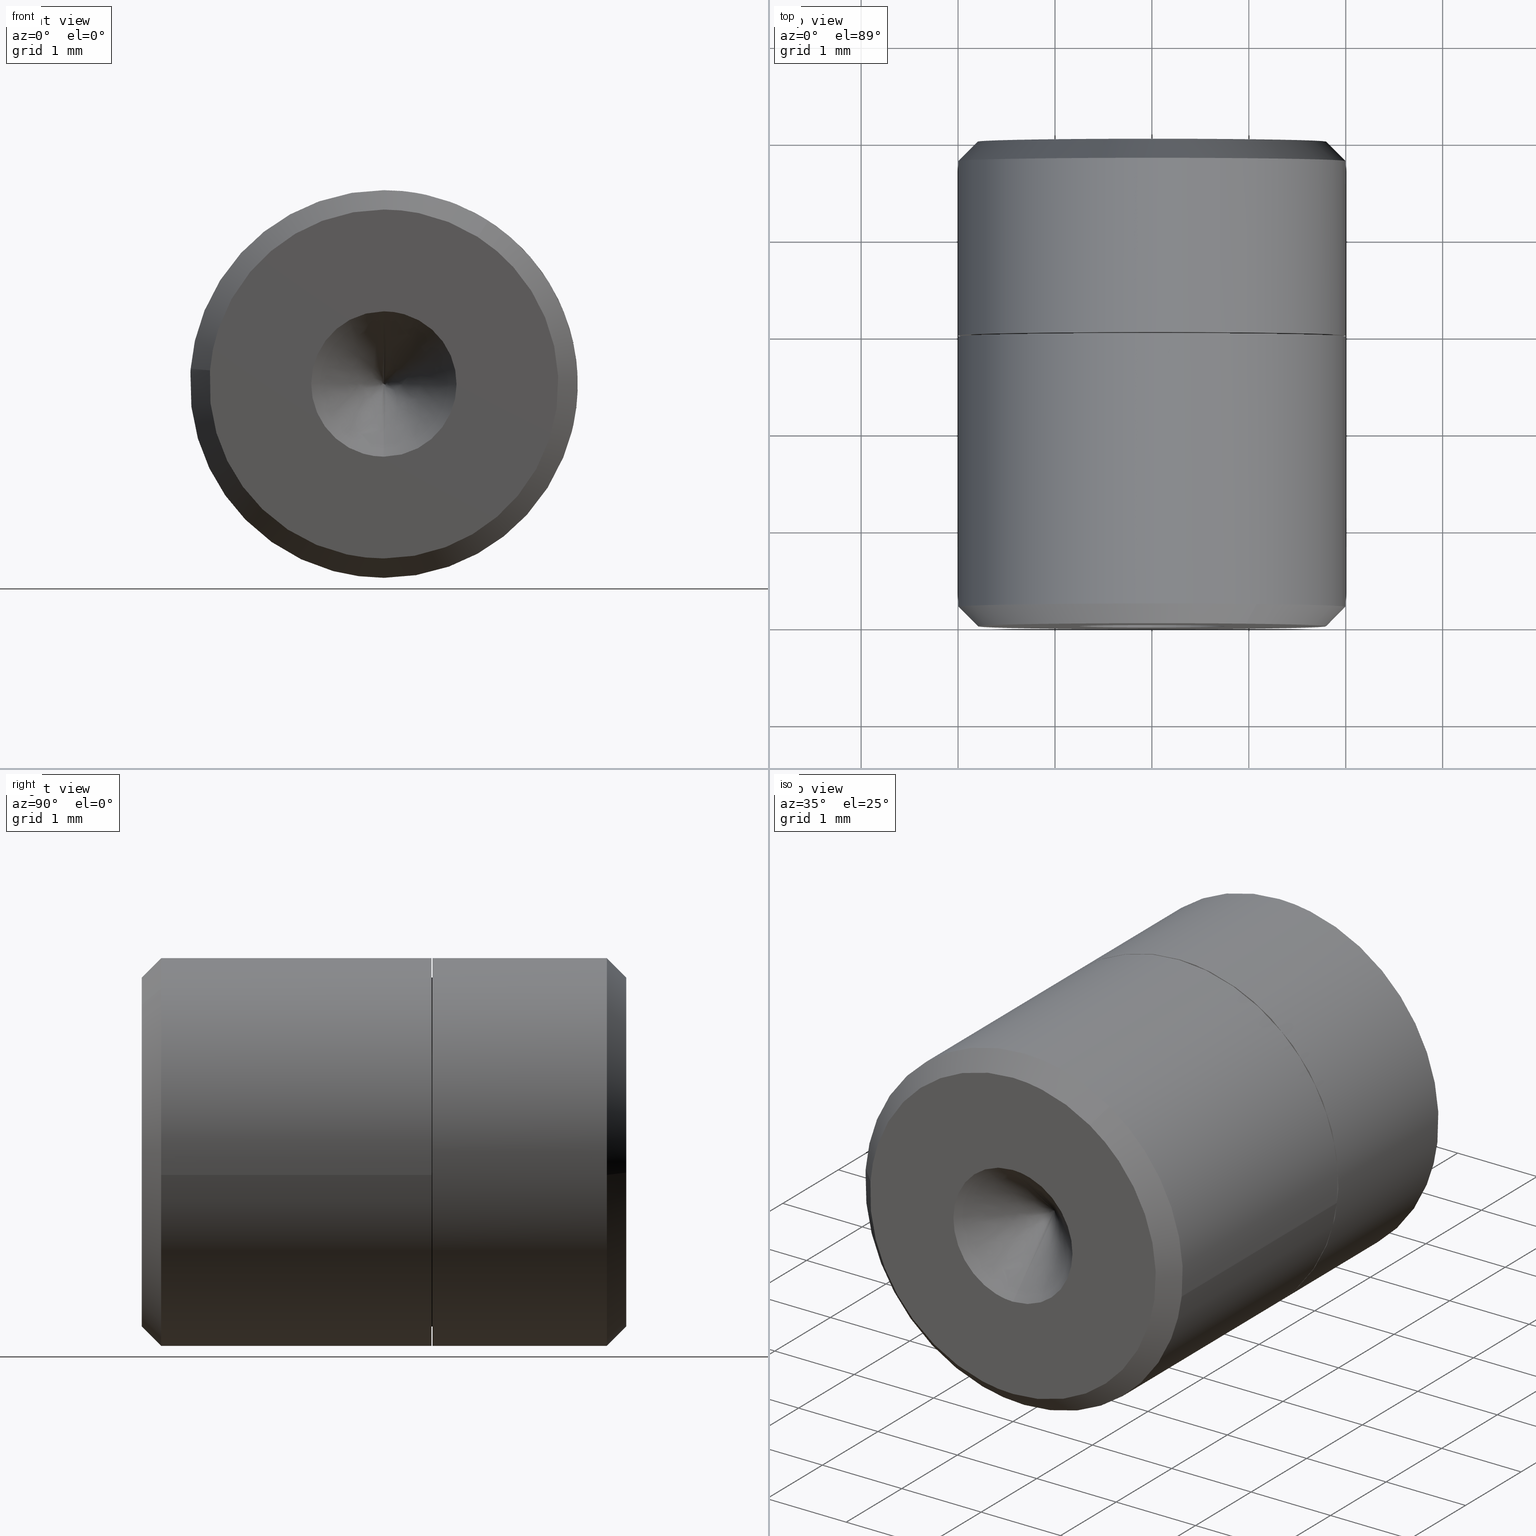
[diagram: canonical four-view strip — front | top / right | iso, engineering-drawing reading convention]
A machine part, canonical four-view strip (front | top / right | iso — engineering-drawing reading convention). The complete STEP part file that produces these views, byte-faithful:
ISO-10303-21;
HEADER;
/****************************************************************
 * Generated by software with PDE/Lib inside                    *
 * PDElib Version 4.4.1-0003, patched  Thursday August 19 11:58 *
 * International Technegroup Inc. (www.iti-oh.com)              *
 ****************************************************************/
FILE_DESCRIPTION((''),'2;1');
FILE_NAME('','2005-07-15T10:18:54',(''),(''),'','CADfix','');
FILE_SCHEMA(('AUTOMOTIVE_DESIGN'));
ENDSEC;
DATA;
#5=APPLICATION_CONTEXT('automotive design');
#6=APPLICATION_PROTOCOL_DEFINITION('Draft International Standard','automotive_design',1998,#5);
#7=PRODUCT_CONTEXT('None',#5,'mechanical');
#8=PRODUCT('body','','None',(#7));
#9=PRODUCT_RELATED_PRODUCT_CATEGORY('part','description',(#8));
#10=PRODUCT_DEFINITION_FORMATION('None','None',#8);
#11=PRODUCT_DEFINITION_CONTEXT('part definition',#5,'design');
#12=PRODUCT_DEFINITION('None','None',#10,#11);
#18=(NAMED_UNIT(*)PLANE_ANGLE_UNIT()SI_UNIT($,.RADIAN.));
#19=DIMENSIONAL_EXPONENTS(0.0,0.0,0.0,0.0,0.0,0.0,0.0);
#20=PLANE_ANGLE_MEASURE_WITH_UNIT(PLANE_ANGLE_MEASURE(0.017453292500000),#18);
#24=(CONVERSION_BASED_UNIT('DEGREE',#20)NAMED_UNIT(#19)PLANE_ANGLE_UNIT());
#28=(NAMED_UNIT(*)SI_UNIT($,.STERADIAN.)SOLID_ANGLE_UNIT());
#32=(LENGTH_UNIT()NAMED_UNIT(*)SI_UNIT(.MILLI.,.METRE.));
#34=UNCERTAINTY_MEASURE_WITH_UNIT(LENGTH_MEASURE(0.001000000000000),#32,'DISTANCE_ACCURACY_VALUE','');
#36=(GEOMETRIC_REPRESENTATION_CONTEXT(3)GLOBAL_UNCERTAINTY_ASSIGNED_CONTEXT((#34))GLOBAL_UNIT_ASSIGNED_CONTEXT((#24,#28,#32))REPRESENTATION_CONTEXT('None','None'));
#37=AXIS2_PLACEMENT_3D('',#38,#39,#40);
#38=CARTESIAN_POINT('',(0.0,0.0,0.0));
#39=DIRECTION('',(0.0,0.0,1.0));
#40=DIRECTION('',(1.0,0.0,0.0));
#41=ADVANCED_BREP_SHAPE_REPRESENTATION('',(#37,#1057),#36);
#42=PRODUCT_DEFINITION_SHAPE('','',#12);
#43=SHAPE_DEFINITION_REPRESENTATION(#42,#41);
#44=CARTESIAN_POINT('',(0.703235948783144,4.845003075000000,1.872287157553307));
#45=CARTESIAN_POINT('',(0.421978903430817,4.845003075000000,1.977928038730294));
#46=CARTESIAN_POINT('',(0.122097079069714,4.845003075000000,1.996269596843726));
#47=CARTESIAN_POINT('',(-1.874172517774020,4.845003074999999,2.118366675913440));
#48=CARTESIAN_POINT('',(-1.996269596843733,4.845003075000000,0.122097079069707));
#49=CARTESIAN_POINT('',(0.703235948783144,2.953874923125000,1.872287157553307));
#50=CARTESIAN_POINT('',(0.421978903430817,2.953874923124999,1.977928038730294));
#51=CARTESIAN_POINT('',(0.122097079069714,2.953874923124999,1.996269596843726));
#52=CARTESIAN_POINT('',(-1.874172517774020,2.953874923124999,2.118366675913440));
#53=CARTESIAN_POINT('',(-1.996269596843733,2.953874923124999,0.122097079069707));
#61=(BOUNDED_SURFACE()B_SPLINE_SURFACE(2,1,((#44,#49),(#45,#50),(#46,#51),(#47,#52),(#48,#53)),.UNSPECIFIED.,.F.,.F.,.U.)B_SPLINE_SURFACE_WITH_KNOTS((3,2,3),(2,2),(0.0,0.662741699796952,3.976450198781711),(0.0,1.0),.UNSPECIFIED.)GEOMETRIC_REPRESENTATION_ITEM()RATIONAL_B_SPLINE_SURFACE(((0.906274169979695,0.906274169979695),(0.941421356237309,0.941421356237309),(1.0,1.0),(0.707106781186548,0.707106781186548),(1.0,1.0)))REPRESENTATION_ITEM('')SURFACE());
#62=CARTESIAN_POINT('',(0.703235474031004,4.800003000000000,1.872287335871314));
#63=VERTEX_POINT('',#62);
#64=CARTESIAN_POINT('',(0.0,4.800002999999999,1.999999999999993));
#65=VERTEX_POINT('',#64);
#66=CARTESIAN_POINT('',(0.703235474031004,4.800003000000000,1.872287335871314));
#67=CARTESIAN_POINT('',(0.363214248271586,4.800002999999999,1.999999999999993));
#68=CARTESIAN_POINT('',(0.0,4.800002999999999,1.999999999999993));
#76=(BOUNDED_CURVE()B_SPLINE_CURVE(2,(#66,#67,#68),.UNSPECIFIED.,.F.,.U.)B_SPLINE_CURVE_WITH_KNOTS((3,3),(0.440284251000991,0.500000000000000),.UNSPECIFIED.)CURVE()GEOMETRIC_REPRESENTATION_ITEM()RATIONAL_B_SPLINE_CURVE((0.893499652661759,0.930038648247296,1.0))REPRESENTATION_ITEM(''));
#77=EDGE_CURVE('',#63,#65,#76,.T.);
#78=ORIENTED_EDGE('',*,*,#77,.T.);
#79=CARTESIAN_POINT('',(-1.996269596843765,4.800002999999885,0.122097079070154));
#80=VERTEX_POINT('',#79);
#81=CARTESIAN_POINT('',(0.0,4.800002999999999,1.999999999999993));
#82=CARTESIAN_POINT('',(-1.881412133809702,4.800002999999999,1.999999999999993));
#83=CARTESIAN_POINT('',(-1.996269596843766,4.800002999999885,0.122097079070154));
#91=(BOUNDED_CURVE()B_SPLINE_CURVE(2,(#81,#82,#83),.UNSPECIFIED.,.F.,.U.)B_SPLINE_CURVE_WITH_KNOTS((3,3),(0.500000000000000,0.739332962241814),.UNSPECIFIED.)CURVE()GEOMETRIC_REPRESENTATION_ITEM()RATIONAL_B_SPLINE_CURVE((1.0,0.719603993283347,0.976072041672871))REPRESENTATION_ITEM(''));
#92=EDGE_CURVE('',#65,#80,#91,.T.);
#93=ORIENTED_EDGE('',*,*,#92,.T.);
#94=CARTESIAN_POINT('',(-1.996269638693471,3.0,0.122096394828707));
#95=VERTEX_POINT('',#94);
#96=CARTESIAN_POINT('',(-1.996269596843765,4.800002999999885,0.122097079070154));
#97=CARTESIAN_POINT('',(-1.996269638693471,3.0,0.122096394828707));
#98=QUASI_UNIFORM_CURVE('',1,(#96,#97),.UNSPECIFIED.,.F.,.U.);
#99=EDGE_CURVE('',#80,#95,#98,.T.);
#100=ORIENTED_EDGE('',*,*,#99,.T.);
#101=CARTESIAN_POINT('',(0.0,3.0,1.999999999999993));
#102=VERTEX_POINT('',#101);
#103=CARTESIAN_POINT('',(0.0,3.0,1.999999999999993));
#104=CARTESIAN_POINT('',(-1.881413425966872,3.0,1.999999999999994));
#105=CARTESIAN_POINT('',(-1.996269638693471,3.0,0.122096394828706));
#113=(BOUNDED_CURVE()B_SPLINE_CURVE(2,(#103,#104,#105),.UNSPECIFIED.,.F.,.U.)B_SPLINE_CURVE_WITH_KNOTS((3,3),(0.500000000000000,0.739333080526194),.UNSPECIFIED.)CURVE()GEOMETRIC_REPRESENTATION_ITEM()RATIONAL_B_SPLINE_CURVE((1.0,0.719603854704575,0.976072295178945))REPRESENTATION_ITEM(''));
#114=EDGE_CURVE('',#102,#95,#113,.T.);
#115=ORIENTED_EDGE('',*,*,#114,.F.);
#116=CARTESIAN_POINT('',(0.703235363436929,3.0,1.872287377410666));
#117=VERTEX_POINT('',#116);
#118=CARTESIAN_POINT('',(0.703235363436929,3.0,1.872287377410667));
#119=CARTESIAN_POINT('',(0.363214126237348,3.000000000000000,1.999999999999993));
#120=CARTESIAN_POINT('',(0.0,3.0,1.999999999999993));
#128=(BOUNDED_CURVE()B_SPLINE_CURVE(2,(#118,#119,#120),.UNSPECIFIED.,.F.,.U.)B_SPLINE_CURVE_WITH_KNOTS((3,3),(0.440284269660865,0.500000000000000),.UNSPECIFIED.)CURVE()GEOMETRIC_REPRESENTATION_ITEM()RATIONAL_B_SPLINE_CURVE((0.893499675497047,0.930038670108699,1.0))REPRESENTATION_ITEM(''));
#129=EDGE_CURVE('',#117,#102,#128,.T.);
#130=ORIENTED_EDGE('',*,*,#129,.F.);
#131=CARTESIAN_POINT('',(0.703235474031004,4.800003000000000,1.872287335871314));
#132=CARTESIAN_POINT('',(0.703235363436929,3.0,1.872287377410666));
#133=QUASI_UNIFORM_CURVE('',1,(#131,#132),.UNSPECIFIED.,.F.,.U.);
#134=EDGE_CURVE('',#63,#117,#133,.T.);
#135=ORIENTED_EDGE('',*,*,#134,.F.);
#136=EDGE_LOOP('',(#78,#93,#100,#115,#130,#135));
#137=FACE_OUTER_BOUND('',#136,.T.);
#138=ADVANCED_FACE('',(#137),#61,.T.);
#139=CARTESIAN_POINT('',(-1.996269596843733,4.845003075000000,0.122097079069707));
#140=CARTESIAN_POINT('',(-2.118366675913447,4.845003074999999,-1.874172517774027));
#141=CARTESIAN_POINT('',(-0.122097079069714,4.845003075000000,-1.996269596843741));
#142=CARTESIAN_POINT('',(1.874172517774020,4.845003074999999,-2.118366675913454));
#143=CARTESIAN_POINT('',(1.996269596843733,4.845003075000000,-0.122097079069721));
#144=CARTESIAN_POINT('',(2.086474445738684,4.845003074999999,1.352739163606123));
#145=CARTESIAN_POINT('',(0.703235948783144,4.845003075000000,1.872287157553307));
#146=CARTESIAN_POINT('',(-1.996269596843733,2.953874923124999,0.122097079069707));
#147=CARTESIAN_POINT('',(-2.118366675913447,2.953874923124999,-1.874172517774027));
#148=CARTESIAN_POINT('',(-0.122097079069714,2.953874923124999,-1.996269596843741));
#149=CARTESIAN_POINT('',(1.874172517774020,2.953874923124999,-2.118366675913454));
#150=CARTESIAN_POINT('',(1.996269596843733,2.953874923124999,-0.122097079069721));
#151=CARTESIAN_POINT('',(2.086474445738684,2.953874923124999,1.352739163606123));
#152=CARTESIAN_POINT('',(0.703235948783144,2.953874923125000,1.872287157553307));
#160=(BOUNDED_SURFACE()B_SPLINE_SURFACE(2,1,((#139,#146),(#140,#147),(#141,#148),(#142,#149),(#143,#150),(#144,#151),(#145,#152)),.UNSPECIFIED.,.F.,.F.,.U.)B_SPLINE_SURFACE_WITH_KNOTS((3,2,2,3),(2,2),(0.0,3.313708498984759,6.627416997969518,9.278383797157325),(0.0,1.0),.UNSPECIFIED.)GEOMETRIC_REPRESENTATION_ITEM()RATIONAL_B_SPLINE_SURFACE(((1.0,1.0),(0.707106781186548,0.707106781186548),(1.0,1.0),(0.707106781186548,0.707106781186548),(1.0,1.0),(0.765685424949238,0.765685424949238),(0.906274169979695,0.906274169979695)))REPRESENTATION_ITEM('')SURFACE());
#161=CARTESIAN_POINT('',(1.986019052727345,4.800002999999828,-0.236068469314878));
#162=VERTEX_POINT('',#161);
#163=CARTESIAN_POINT('',(1.986019052727345,4.800002999999828,-0.236068469314878));
#164=CARTESIAN_POINT('',(2.0,4.800002999999999,-0.118448239305175));
#165=CARTESIAN_POINT('',(2.0,4.800002999999999,-7.277231E-015));
#166=CARTESIAN_POINT('',(2.0,4.800002999999998,1.385219941802166));
#167=CARTESIAN_POINT('',(0.703235474031004,4.800003000000000,1.872287335871315));
#175=(BOUNDED_CURVE()B_SPLINE_CURVE(2,(#163,#164,#165,#166,#167),.UNSPECIFIED.,.F.,.U.)B_SPLINE_CURVE_WITH_KNOTS((3,2,3),(0.229562473515417,0.250000000000000,0.440284251000991),.UNSPECIFIED.)CURVE()GEOMETRIC_REPRESENTATION_ITEM()RATIONAL_B_SPLINE_CURVE((0.956026754187441,0.976055948333382,1.0,0.777068132939251,0.893499652661760))REPRESENTATION_ITEM(''));
#176=EDGE_CURVE('',#162,#63,#175,.T.);
#177=ORIENTED_EDGE('',*,*,#176,.T.);
#178=ORIENTED_EDGE('',*,*,#134,.T.);
#179=CARTESIAN_POINT('',(0.0,3.0,-2.000000000000008));
#180=VERTEX_POINT('',#179);
#181=CARTESIAN_POINT('',(0.0,3.0,-2.000000000000008));
#182=CARTESIAN_POINT('',(2.000000000000000,3.0,-2.000000000000008));
#183=CARTESIAN_POINT('',(2.0,3.0,-7.277231E-015));
#184=CARTESIAN_POINT('',(2.000000000000000,3.000000000000001,1.385220116611858));
#185=CARTESIAN_POINT('',(0.703235363436929,3.0,1.872287377410667));
#193=(BOUNDED_CURVE()B_SPLINE_CURVE(2,(#181,#182,#183,#184,#185),.UNSPECIFIED.,.F.,.U.)B_SPLINE_CURVE_WITH_KNOTS((3,2,3),(0.0,0.250000000000000,0.440284269660865),.UNSPECIFIED.)CURVE()GEOMETRIC_REPRESENTATION_ITEM()RATIONAL_B_SPLINE_CURVE((1.0,0.707106781186548,1.0,0.777068111077849,0.893499675497047))REPRESENTATION_ITEM(''));
#194=EDGE_CURVE('',#180,#117,#193,.T.);
#195=ORIENTED_EDGE('',*,*,#194,.F.);
#196=CARTESIAN_POINT('',(-1.996269638693470,3.0,0.122096394828706));
#197=CARTESIAN_POINT('',(-2.000000000000000,3.000000000000000,0.061104840437647));
#198=CARTESIAN_POINT('',(-2.0,3.0,-7.277231E-015));
#199=CARTESIAN_POINT('',(-2.000000000000000,3.0,-2.000000000000008));
#200=CARTESIAN_POINT('',(0.0,3.0,-2.000000000000008));
#208=(BOUNDED_CURVE()B_SPLINE_CURVE(2,(#196,#197,#198,#199,#200),.UNSPECIFIED.,.F.,.U.)B_SPLINE_CURVE_WITH_KNOTS((3,2,3),(0.739333080526193,0.750000000000000,1.0),.UNSPECIFIED.)CURVE()GEOMETRIC_REPRESENTATION_ITEM()RATIONAL_B_SPLINE_CURVE((0.976072295178943,0.987502926481971,1.0,0.707106781186548,1.0))REPRESENTATION_ITEM(''));
#209=EDGE_CURVE('',#95,#180,#208,.T.);
#210=ORIENTED_EDGE('',*,*,#209,.F.);
#211=ORIENTED_EDGE('',*,*,#99,.F.);
#212=CARTESIAN_POINT('',(0.0,4.800002999999999,-2.000000000000008));
#213=VERTEX_POINT('',#212);
#214=CARTESIAN_POINT('',(-1.996269596843766,4.800002999999885,0.122097079070154));
#215=CARTESIAN_POINT('',(-2.0,4.800002999999999,0.061105526598061));
#216=CARTESIAN_POINT('',(-2.0,4.800002999999999,-7.277231E-015));
#217=CARTESIAN_POINT('',(-2.000000000000000,4.800003000000000,-2.000000000000008));
#218=CARTESIAN_POINT('',(0.0,4.800002999999999,-2.000000000000008));
#226=(BOUNDED_CURVE()B_SPLINE_CURVE(2,(#214,#215,#216,#217,#218),.UNSPECIFIED.,.F.,.U.)B_SPLINE_CURVE_WITH_KNOTS((3,2,3),(0.739332962241815,0.750000000000000,1.0),.UNSPECIFIED.)CURVE()GEOMETRIC_REPRESENTATION_ITEM()RATIONAL_B_SPLINE_CURVE((0.976072041672873,0.987502787903202,1.0,0.707106781186548,1.0))REPRESENTATION_ITEM(''));
#227=EDGE_CURVE('',#80,#213,#226,.T.);
#228=ORIENTED_EDGE('',*,*,#227,.T.);
#229=CARTESIAN_POINT('',(0.0,4.800002999999999,-2.000000000000008));
#230=CARTESIAN_POINT('',(1.776349051900332,4.800002999999999,-2.000000000000008));
#231=CARTESIAN_POINT('',(1.986019052727345,4.800002999999828,-0.236068469314878));
#239=(BOUNDED_CURVE()B_SPLINE_CURVE(2,(#229,#230,#231),.UNSPECIFIED.,.F.,.U.)B_SPLINE_CURVE_WITH_KNOTS((3,3),(0.0,0.229562473515417),.UNSPECIFIED.)CURVE()GEOMETRIC_REPRESENTATION_ITEM()RATIONAL_B_SPLINE_CURVE((1.0,0.731050832853166,0.956026754187441))REPRESENTATION_ITEM(''));
#240=EDGE_CURVE('',#213,#162,#239,.T.);
#241=ORIENTED_EDGE('',*,*,#240,.T.);
#242=EDGE_LOOP('',(#177,#178,#195,#210,#211,#228,#241));
#243=FACE_OUTER_BOUND('',#242,.T.);
#244=ADVANCED_FACE('',(#243),#160,.T.);
#245=CARTESIAN_POINT('',(1.782449046318469,5.005007100000002,-0.211871088253615));
#246=CARTESIAN_POINT('',(1.788512705838311,5.005007100000001,-0.160858162339885));
#247=CARTESIAN_POINT('',(1.791648893902727,5.005007100000001,-0.109581940740815));
#248=CARTESIAN_POINT('',(1.901230834643535,5.005007100000001,1.682066953161911));
#249=CARTESIAN_POINT('',(0.109581940740808,5.005007100000001,1.791648893902719));
#250=CARTESIAN_POINT('',(-1.682066953161919,5.005007100000001,1.901230834643527));
#251=CARTESIAN_POINT('',(-1.791648893902727,5.005007100000001,0.109581940740801));
#252=CARTESIAN_POINT('',(1.991108302887555,4.794877897500000,-0.236673403840022));
#253=CARTESIAN_POINT('',(1.997881794023684,4.794877897499998,-0.179688739649365));
#254=CARTESIAN_POINT('',(2.001385114417259,4.794877897499998,-0.122409957527944));
#255=CARTESIAN_POINT('',(2.123795071945195,4.794877897499998,1.878975156889315));
#256=CARTESIAN_POINT('',(0.122409957527937,4.794877897499998,2.001385114417252));
#257=CARTESIAN_POINT('',(-1.878975156889323,4.794877897499998,2.123795071945188));
#258=CARTESIAN_POINT('',(-2.001385114417259,4.794877897499998,0.122409957527929));
#266=(BOUNDED_SURFACE()B_SPLINE_SURFACE(2,1,((#245,#252),(#246,#253),(#247,#254),(#248,#255),(#249,#256),(#250,#257),(#251,#258)),.UNSPECIFIED.,.F.,.F.,.U.)B_SPLINE_SURFACE_WITH_KNOTS((3,2,2,3),(2,2),(0.0,0.132888000175363,3.455088004559443,6.777288008943523),(0.0,0.297166825123025),.UNSPECIFIED.)GEOMETRIC_REPRESENTATION_ITEM()RATIONAL_B_SPLINE_SURFACE(((0.977505800795127,0.977505800795127),(0.988284271247462,0.988284271247462),(1.0,1.0),(0.707106781186548,0.707106781186548),(1.0,1.0),(0.707106781186548,0.707106781186548),(1.0,1.0)))REPRESENTATION_ITEM('')SURFACE());
#267=ORIENTED_EDGE('',*,*,#176,.F.);
#268=CARTESIAN_POINT('',(1.787414168426023,5.000006999999906,-0.212461268280169));
#269=VERTEX_POINT('',#268);
#270=CARTESIAN_POINT('',(1.787414168426023,5.000006999999906,-0.212461268280169));
#271=CARTESIAN_POINT('',(1.986019052727345,4.800002999999828,-0.236068469314878));
#272=QUASI_UNIFORM_CURVE('',1,(#270,#271),.UNSPECIFIED.,.F.,.U.);
#273=EDGE_CURVE('',#269,#162,#272,.T.);
#274=ORIENTED_EDGE('',*,*,#273,.F.);
#275=CARTESIAN_POINT('',(0.0,5.000007000000000,1.799996999999993));
#276=VERTEX_POINT('',#275);
#277=CARTESIAN_POINT('',(1.787414168426023,5.000006999999906,-0.212461268280169));
#278=CARTESIAN_POINT('',(1.799997000000000,5.000007000000000,-0.106603237701785));
#279=CARTESIAN_POINT('',(1.799997000000000,5.000007000000000,-7.277231E-015));
#280=CARTESIAN_POINT('',(1.799997000000000,5.000007000000000,1.799996999999993));
#281=CARTESIAN_POINT('',(0.0,5.000007000000000,1.799996999999993));
#289=(BOUNDED_CURVE()B_SPLINE_CURVE(2,(#277,#278,#279,#280,#281),.UNSPECIFIED.,.F.,.U.)B_SPLINE_CURVE_WITH_KNOTS((3,2,3),(0.229562473515514,0.250000000000000,0.500000000000000),.UNSPECIFIED.)CURVE()GEOMETRIC_REPRESENTATION_ITEM()RATIONAL_B_SPLINE_CURVE((0.956026754187630,0.976055948333494,1.0,0.707106781186548,1.0))REPRESENTATION_ITEM(''));
#290=EDGE_CURVE('',#269,#276,#289,.T.);
#291=ORIENTED_EDGE('',*,*,#290,.T.);
#292=CARTESIAN_POINT('',(-1.796639642755264,5.000006999999432,0.109887188021407));
#293=VERTEX_POINT('',#292);
#294=CARTESIAN_POINT('',(0.0,5.000007000000000,1.799996999999993));
#295=CARTESIAN_POINT('',(-1.693268098304004,5.000007000000001,1.799996999999993));
#296=CARTESIAN_POINT('',(-1.796639642755264,5.000006999999433,0.109887188021407));
#304=(BOUNDED_CURVE()B_SPLINE_CURVE(2,(#294,#295,#296),.UNSPECIFIED.,.F.,.U.)B_SPLINE_CURVE_WITH_KNOTS((3,3),(0.500000000000000,0.739332962241150),.UNSPECIFIED.)CURVE()GEOMETRIC_REPRESENTATION_ITEM()RATIONAL_B_SPLINE_CURVE((1.0,0.719603993284125,0.976072041671448))REPRESENTATION_ITEM(''));
#305=EDGE_CURVE('',#276,#293,#304,.T.);
#306=ORIENTED_EDGE('',*,*,#305,.T.);
#307=CARTESIAN_POINT('',(-1.796639642755264,5.000006999999432,0.109887188021407));
#308=CARTESIAN_POINT('',(-1.996269596843765,4.800002999999885,0.122097079070154));
#309=QUASI_UNIFORM_CURVE('',1,(#307,#308),.UNSPECIFIED.,.F.,.U.);
#310=EDGE_CURVE('',#293,#80,#309,.T.);
#311=ORIENTED_EDGE('',*,*,#310,.T.);
#312=ORIENTED_EDGE('',*,*,#92,.F.);
#313=ORIENTED_EDGE('',*,*,#77,.F.);
#314=EDGE_LOOP('',(#267,#274,#291,#306,#311,#312,#313));
#315=FACE_OUTER_BOUND('',#314,.T.);
#316=ADVANCED_FACE('',(#315),#266,.T.);
#317=CARTESIAN_POINT('',(-1.791648893902727,5.005007100000001,0.109581940740801));
#318=CARTESIAN_POINT('',(-1.901230834643535,5.005007100000001,-1.682066953161926));
#319=CARTESIAN_POINT('',(-0.109581940740808,5.005007100000001,-1.791648893902734));
#320=CARTESIAN_POINT('',(1.582367855310654,5.005007100000001,-1.895132976592319));
#321=CARTESIAN_POINT('',(1.782449046318469,5.005007100000002,-0.211871088253615));
#322=CARTESIAN_POINT('',(-2.001385114417259,4.794877897499998,0.122409957527929));
#323=CARTESIAN_POINT('',(-2.123795071945195,4.794877897499998,-1.878975156889329));
#324=CARTESIAN_POINT('',(-0.122409957527937,4.794877897499998,-2.001385114417266));
#325=CARTESIAN_POINT('',(1.767604959838212,4.794877897499998,-2.116983378886881));
#326=CARTESIAN_POINT('',(1.991108302887555,4.794877897500000,-0.236673403840022));
#334=(BOUNDED_SURFACE()B_SPLINE_SURFACE(2,1,((#317,#322),(#318,#323),(#319,#324),(#320,#325),(#321,#326)),.UNSPECIFIED.,.F.,.F.,.U.)B_SPLINE_SURFACE_WITH_KNOTS((3,2,3),(2,2),(0.0,3.322200004384079,6.511512008592796),(0.0,0.297166825123025),.UNSPECIFIED.)GEOMETRIC_REPRESENTATION_ITEM()RATIONAL_B_SPLINE_SURFACE(((1.0,1.0),(0.707106781186548,0.707106781186548),(1.0,1.0),(0.718822509939086,0.718822509939086),(0.977505800795127,0.977505800795127)))REPRESENTATION_ITEM('')SURFACE());
#335=ORIENTED_EDGE('',*,*,#240,.F.);
#336=ORIENTED_EDGE('',*,*,#227,.F.);
#337=ORIENTED_EDGE('',*,*,#310,.F.);
#338=CARTESIAN_POINT('',(0.0,5.000007000000000,-1.799997000000007));
#339=VERTEX_POINT('',#338);
#340=CARTESIAN_POINT('',(-1.796639642755263,5.000006999999432,0.109887188021407));
#341=CARTESIAN_POINT('',(-1.799997000000000,5.000007000000001,0.054994882283431));
#342=CARTESIAN_POINT('',(-1.799997000000000,5.000007000000000,-7.277231E-015));
#343=CARTESIAN_POINT('',(-1.799997000000000,5.000007000000000,-1.799997000000007));
#344=CARTESIAN_POINT('',(0.0,5.000007000000000,-1.799997000000007));
#352=(BOUNDED_CURVE()B_SPLINE_CURVE(2,(#340,#341,#342,#343,#344),.UNSPECIFIED.,.F.,.U.)B_SPLINE_CURVE_WITH_KNOTS((3,2,3),(0.739332962241151,0.750000000000000,1.0),.UNSPECIFIED.)CURVE()GEOMETRIC_REPRESENTATION_ITEM()RATIONAL_B_SPLINE_CURVE((0.976072041671450,0.987502787902424,1.0,0.707106781186548,1.0))REPRESENTATION_ITEM(''));
#353=EDGE_CURVE('',#293,#339,#352,.T.);
#354=ORIENTED_EDGE('',*,*,#353,.T.);
#355=CARTESIAN_POINT('',(0.0,5.000007000000000,-1.799997000000007));
#356=CARTESIAN_POINT('',(1.598711482187640,5.000006999999999,-1.799997000000007));
#357=CARTESIAN_POINT('',(1.787414168426023,5.000006999999906,-0.212461268280169));
#365=(BOUNDED_CURVE()B_SPLINE_CURVE(2,(#355,#356,#357),.UNSPECIFIED.,.F.,.U.)B_SPLINE_CURVE_WITH_KNOTS((3,3),(0.0,0.229562473515514),.UNSPECIFIED.)CURVE()GEOMETRIC_REPRESENTATION_ITEM()RATIONAL_B_SPLINE_CURVE((1.0,0.731050832853053,0.956026754187630))REPRESENTATION_ITEM(''));
#366=EDGE_CURVE('',#339,#269,#365,.T.);
#367=ORIENTED_EDGE('',*,*,#366,.T.);
#368=ORIENTED_EDGE('',*,*,#273,.T.);
#369=EDGE_LOOP('',(#335,#336,#337,#354,#367,#368));
#370=FACE_OUTER_BOUND('',#369,.T.);
#371=ADVANCED_FACE('',(#370),#334,.T.);
#372=CARTESIAN_POINT('',(1.787416154445073,3.000250000000001,-0.212461504347938));
#373=CARTESIAN_POINT('',(1.793496711419874,3.000250000000000,-0.161306421933638));
#374=CARTESIAN_POINT('',(1.796641639024562,3.000250000000000,-0.109887310114210));
#375=CARTESIAN_POINT('',(1.906528949138765,3.000250000000001,1.686754328910352));
#376=CARTESIAN_POINT('',(0.109887310114203,3.000250000000000,1.796641639024554));
#377=CARTESIAN_POINT('',(-1.686754328910359,3.000250000000001,1.906528949138758));
#378=CARTESIAN_POINT('',(-1.796641639024562,3.000250000000000,0.109887310114196));
#379=CARTESIAN_POINT('',(1.787416154445073,2.989743750000000,-0.212461504347938));
#380=CARTESIAN_POINT('',(1.793496711419874,2.989743750000000,-0.161306421933638));
#381=CARTESIAN_POINT('',(1.796641639024562,2.989743750000000,-0.109887310114210));
#382=CARTESIAN_POINT('',(1.906528949138765,2.989743750000000,1.686754328910352));
#383=CARTESIAN_POINT('',(0.109887310114203,2.989743750000000,1.796641639024554));
#384=CARTESIAN_POINT('',(-1.686754328910359,2.989743750000000,1.906528949138758));
#385=CARTESIAN_POINT('',(-1.796641639024562,2.989743750000000,0.109887310114196));
#393=(BOUNDED_SURFACE()B_SPLINE_SURFACE(2,1,((#372,#379),(#373,#380),(#374,#381),(#375,#382),(#376,#383),(#377,#384),(#378,#385)),.UNSPECIFIED.,.F.,.F.,.U.)B_SPLINE_SURFACE_WITH_KNOTS((3,2,2,3),(2,2),(3.078760800517997,3.141592653589793,4.712388980384690,6.283185307179586),(0.0,0.010506250000001),.UNSPECIFIED.)GEOMETRIC_REPRESENTATION_ITEM()RATIONAL_B_SPLINE_SURFACE(((0.977505800795127,0.977505800795127),(0.988284271247462,0.988284271247462),(1.0,1.0),(0.707106781186548,0.707106781186548),(1.0,1.0),(0.707106781186548,0.707106781186548),(1.0,1.0)))REPRESENTATION_ITEM('')SURFACE());
#394=CARTESIAN_POINT('',(1.787416221779421,3.000000000000212,-0.212460937869666));
#395=VERTEX_POINT('',#394);
#396=CARTESIAN_POINT('',(0.0,3.0,1.799998999999993));
#397=VERTEX_POINT('',#396);
#398=CARTESIAN_POINT('',(1.787416221779421,3.000000000000212,-0.212460937869666));
#399=CARTESIAN_POINT('',(1.799999000000000,3.000000000000001,-0.106602783682350));
#400=CARTESIAN_POINT('',(1.799999000000000,3.0,-7.277231E-015));
#401=CARTESIAN_POINT('',(1.799999000000000,3.000000000000000,1.799998999999993));
#402=CARTESIAN_POINT('',(0.0,3.0,1.799998999999993));
#410=(BOUNDED_CURVE()B_SPLINE_CURVE(2,(#398,#399,#400,#401,#402),.UNSPECIFIED.,.F.,.U.)B_SPLINE_CURVE_WITH_KNOTS((3,2,3),(0.229562580638628,0.250000000000000,0.500000000000000),.UNSPECIFIED.)CURVE()GEOMETRIC_REPRESENTATION_ITEM()RATIONAL_B_SPLINE_CURVE((0.956026964153426,0.976056073836030,1.0,0.707106781186547,1.0))REPRESENTATION_ITEM(''));
#411=EDGE_CURVE('',#395,#397,#410,.T.);
#412=ORIENTED_EDGE('',*,*,#411,.T.);
#413=CARTESIAN_POINT('',(-1.796641727162468,2.999999999999628,0.109885869053202));
#414=VERTEX_POINT('',#413);
#415=CARTESIAN_POINT('',(0.0,3.0,1.799998999999993));
#416=CARTESIAN_POINT('',(-1.693271340410624,3.000000000000000,1.799998999999992));
#417=CARTESIAN_POINT('',(-1.796641727162468,2.999999999999627,0.109885869053202));
#425=(BOUNDED_CURVE()B_SPLINE_CURVE(2,(#415,#416,#417),.UNSPECIFIED.,.F.,.U.)B_SPLINE_CURVE_WITH_KNOTS((3,3),(0.500000000000000,0.739333100639336),.UNSPECIFIED.)CURVE()GEOMETRIC_REPRESENTATION_ITEM()RATIONAL_B_SPLINE_CURVE((1.0,0.719603831140563,0.976072338285286))REPRESENTATION_ITEM(''));
#426=EDGE_CURVE('',#397,#414,#425,.T.);
#427=ORIENTED_EDGE('',*,*,#426,.T.);
#428=CARTESIAN_POINT('',(-1.796641726100859,2.990000000000000,0.109885886410811));
#429=VERTEX_POINT('',#428);
#430=CARTESIAN_POINT('',(-1.796641727162468,2.999999999999628,0.109885869053202));
#431=CARTESIAN_POINT('',(-1.796641726100859,2.990000000000000,0.109885886410811));
#432=QUASI_UNIFORM_CURVE('',1,(#430,#431),.UNSPECIFIED.,.F.,.U.);
#433=EDGE_CURVE('',#414,#429,#432,.T.);
#434=ORIENTED_EDGE('',*,*,#433,.T.);
#435=CARTESIAN_POINT('',(0.0,2.990000000000000,1.799998999999993));
#436=VERTEX_POINT('',#435);
#437=CARTESIAN_POINT('',(0.0,2.990000000000000,1.799998999999993));
#438=CARTESIAN_POINT('',(-1.693271324021123,2.990000000000001,1.799998999999993));
#439=CARTESIAN_POINT('',(-1.796641726100859,2.990000000000000,0.109885886410811));
#447=(BOUNDED_CURVE()B_SPLINE_CURVE(2,(#437,#438,#439),.UNSPECIFIED.,.F.,.U.)B_SPLINE_CURVE_WITH_KNOTS((3,3),(0.500000000000000,0.739333098972337),.UNSPECIFIED.)CURVE()GEOMETRIC_REPRESENTATION_ITEM()RATIONAL_B_SPLINE_CURVE((1.0,0.719603833093574,0.976072334712585))REPRESENTATION_ITEM(''));
#448=EDGE_CURVE('',#436,#429,#447,.T.);
#449=ORIENTED_EDGE('',*,*,#448,.F.);
#450=CARTESIAN_POINT('',(1.787416220967506,2.990000000000000,-0.212460944700251));
#451=VERTEX_POINT('',#450);
#452=CARTESIAN_POINT('',(1.787416220967506,2.990000000000000,-0.212460944700251));
#453=CARTESIAN_POINT('',(1.799999000000000,2.990000000000000,-0.106602790585147));
#454=CARTESIAN_POINT('',(1.799999000000000,2.990000000000000,-7.277231E-015));
#455=CARTESIAN_POINT('',(1.799999000000000,2.990000000000000,1.799998999999993));
#456=CARTESIAN_POINT('',(0.0,2.990000000000000,1.799998999999993));
#464=(BOUNDED_CURVE()B_SPLINE_CURVE(2,(#452,#453,#454,#455,#456),.UNSPECIFIED.,.F.,.U.)B_SPLINE_CURVE_WITH_KNOTS((3,2,3),(0.229562579346941,0.250000000000000,0.500000000000000),.UNSPECIFIED.)CURVE()GEOMETRIC_REPRESENTATION_ITEM()RATIONAL_B_SPLINE_CURVE((0.956026961621663,0.976056072322724,1.0,0.707106781186547,1.0))REPRESENTATION_ITEM(''));
#465=EDGE_CURVE('',#451,#436,#464,.T.);
#466=ORIENTED_EDGE('',*,*,#465,.F.);
#467=CARTESIAN_POINT('',(1.787416221779421,3.000000000000212,-0.212460937869666));
#468=CARTESIAN_POINT('',(1.787416220967506,2.990000000000000,-0.212460944700251));
#469=QUASI_UNIFORM_CURVE('',1,(#467,#468),.UNSPECIFIED.,.F.,.U.);
#470=EDGE_CURVE('',#395,#451,#469,.T.);
#471=ORIENTED_EDGE('',*,*,#470,.F.);
#472=EDGE_LOOP('',(#412,#427,#434,#449,#466,#471));
#473=FACE_OUTER_BOUND('',#472,.T.);
#474=ADVANCED_FACE('',(#473),#393,.T.);
#475=CARTESIAN_POINT('',(-1.796641639024562,3.000250000000000,0.109887310114196));
#476=CARTESIAN_POINT('',(-1.906528949138765,3.000250000000001,-1.686754328910366));
#477=CARTESIAN_POINT('',(-0.109887310114203,3.000250000000000,-1.796641639024569));
#478=CARTESIAN_POINT('',(1.586777401967612,3.000250000000000,-1.900414098332359));
#479=CARTESIAN_POINT('',(1.787416154445073,3.000250000000001,-0.212461504347938));
#480=CARTESIAN_POINT('',(-1.796641639024562,2.989743750000000,0.109887310114196));
#481=CARTESIAN_POINT('',(-1.906528949138765,2.989743750000000,-1.686754328910366));
#482=CARTESIAN_POINT('',(-0.109887310114203,2.989743750000000,-1.796641639024569));
#483=CARTESIAN_POINT('',(1.586777401967612,2.989743749999999,-1.900414098332359));
#484=CARTESIAN_POINT('',(1.787416154445073,2.989743750000000,-0.212461504347938));
#492=(BOUNDED_SURFACE()B_SPLINE_SURFACE(2,1,((#475,#480),(#476,#481),(#477,#482),(#478,#483),(#479,#484)),.UNSPECIFIED.,.F.,.F.,.U.)B_SPLINE_SURFACE_WITH_KNOTS((3,2,3),(2,2),(0.0,1.570796326794897,3.078760800517997),(0.0,0.010506250000001),.UNSPECIFIED.)GEOMETRIC_REPRESENTATION_ITEM()RATIONAL_B_SPLINE_SURFACE(((1.0,1.0),(0.707106781186548,0.707106781186548),(1.0,1.0),(0.718822509939086,0.718822509939086),(0.977505800795127,0.977505800795127)))REPRESENTATION_ITEM('')SURFACE());
#493=CARTESIAN_POINT('',(0.0,3.0,-1.799999000000008));
#494=VERTEX_POINT('',#493);
#495=CARTESIAN_POINT('',(0.0,3.0,-1.799999000000008));
#496=CARTESIAN_POINT('',(1.598714279018743,2.999999999999999,-1.799999000000007));
#497=CARTESIAN_POINT('',(1.787416221779421,3.000000000000211,-0.212460937869666));
#505=(BOUNDED_CURVE()B_SPLINE_CURVE(2,(#495,#496,#497),.UNSPECIFIED.,.F.,.U.)B_SPLINE_CURVE_WITH_KNOTS((3,3),(0.0,0.229562580638628),.UNSPECIFIED.)CURVE()GEOMETRIC_REPRESENTATION_ITEM()RATIONAL_B_SPLINE_CURVE((1.0,0.731050707350518,0.956026964153426))REPRESENTATION_ITEM(''));
#506=EDGE_CURVE('',#494,#395,#505,.T.);
#507=ORIENTED_EDGE('',*,*,#506,.T.);
#508=ORIENTED_EDGE('',*,*,#470,.T.);
#509=CARTESIAN_POINT('',(0.0,2.990000000000000,-1.799999000000008));
#510=VERTEX_POINT('',#509);
#511=CARTESIAN_POINT('',(0.0,2.990000000000000,-1.799999000000008));
#512=CARTESIAN_POINT('',(1.598714266713800,2.990000000000001,-1.799999000000008));
#513=CARTESIAN_POINT('',(1.787416220967507,2.990000000000000,-0.212460944700251));
#521=(BOUNDED_CURVE()B_SPLINE_CURVE(2,(#511,#512,#513),.UNSPECIFIED.,.F.,.U.)B_SPLINE_CURVE_WITH_KNOTS((3,3),(0.0,0.229562579346941),.UNSPECIFIED.)CURVE()GEOMETRIC_REPRESENTATION_ITEM()RATIONAL_B_SPLINE_CURVE((1.0,0.731050708863824,0.956026961621663))REPRESENTATION_ITEM(''));
#522=EDGE_CURVE('',#510,#451,#521,.T.);
#523=ORIENTED_EDGE('',*,*,#522,.F.);
#524=CARTESIAN_POINT('',(-1.796641726100859,2.990000000000000,0.109885886410811));
#525=CARTESIAN_POINT('',(-1.799999000000001,2.990000000000001,0.054994229537077));
#526=CARTESIAN_POINT('',(-1.799999000000000,2.990000000000000,-7.277231E-015));
#527=CARTESIAN_POINT('',(-1.799999000000000,2.990000000000000,-1.799999000000008));
#528=CARTESIAN_POINT('',(0.0,2.990000000000000,-1.799999000000008));
#536=(BOUNDED_CURVE()B_SPLINE_CURVE(2,(#524,#525,#526,#527,#528),.UNSPECIFIED.,.F.,.U.)B_SPLINE_CURVE_WITH_KNOTS((3,2,3),(0.739333098972337,0.750000000000000,1.0),.UNSPECIFIED.)CURVE()GEOMETRIC_REPRESENTATION_ITEM()RATIONAL_B_SPLINE_CURVE((0.976072334712585,0.987502948092973,1.0,0.707106781186547,1.0))REPRESENTATION_ITEM(''));
#537=EDGE_CURVE('',#429,#510,#536,.T.);
#538=ORIENTED_EDGE('',*,*,#537,.F.);
#539=ORIENTED_EDGE('',*,*,#433,.F.);
#540=CARTESIAN_POINT('',(-1.796641727162468,2.999999999999627,0.109885869053202));
#541=CARTESIAN_POINT('',(-1.799999000000000,3.000000000000000,0.054994220833939));
#542=CARTESIAN_POINT('',(-1.799999000000000,3.0,-7.277231E-015));
#543=CARTESIAN_POINT('',(-1.799999000000000,3.000000000000000,-1.799999000000008));
#544=CARTESIAN_POINT('',(0.0,3.0,-1.799999000000008));
#552=(BOUNDED_CURVE()B_SPLINE_CURVE(2,(#540,#541,#542,#543,#544),.UNSPECIFIED.,.F.,.U.)B_SPLINE_CURVE_WITH_KNOTS((3,2,3),(0.739333100639336,0.750000000000000,1.0),.UNSPECIFIED.)CURVE()GEOMETRIC_REPRESENTATION_ITEM()RATIONAL_B_SPLINE_CURVE((0.976072338285286,0.987502950045984,1.0,0.707106781186547,1.0))REPRESENTATION_ITEM(''));
#553=EDGE_CURVE('',#414,#494,#552,.T.);
#554=ORIENTED_EDGE('',*,*,#553,.T.);
#555=EDGE_LOOP('',(#507,#508,#523,#538,#539,#554));
#556=FACE_OUTER_BOUND('',#555,.T.);
#557=ADVANCED_FACE('',(#556),#492,.T.);
#558=CARTESIAN_POINT('',(0.965441622938872,-0.005000100000001,1.513256023595539));
#559=CARTESIAN_POINT('',(1.874024559082568,-0.005000100000001,0.933589548942481));
#560=CARTESIAN_POINT('',(1.789465592210697,-0.005000100000001,-0.140833996410917));
#561=CARTESIAN_POINT('',(1.648631595799788,-0.005000100000001,-1.930299588621613));
#562=CARTESIAN_POINT('',(-0.140833996410910,-0.005000100000001,-1.789465592210704));
#563=CARTESIAN_POINT('',(-1.930299588621606,-0.005000100000001,-1.648631595799795));
#564=CARTESIAN_POINT('',(-1.789465592210697,-0.005000100000001,0.140833996410902));
#565=CARTESIAN_POINT('',(1.078458085991246,0.205129102500022,1.690400699582123));
#566=CARTESIAN_POINT('',(2.093401497375403,0.205129102500022,1.042877346627190));
#567=CARTESIAN_POINT('',(1.998943894347645,0.205129102500022,-0.157320296331818));
#568=CARTESIAN_POINT('',(1.841623598015834,0.205129102500022,-2.156264190679463));
#569=CARTESIAN_POINT('',(-0.157320296331811,0.205129102500022,-1.998943894347652));
#570=CARTESIAN_POINT('',(-2.156264190679456,0.205129102500022,-1.841623598015841));
#571=CARTESIAN_POINT('',(-1.998943894347645,0.205129102500022,0.157320296331803));
#579=(BOUNDED_SURFACE()B_SPLINE_SURFACE(2,1,((#558,#565),(#559,#566),(#560,#567),(#561,#568),(#562,#569),(#563,#570),(#564,#571)),.UNSPECIFIED.,.F.,.F.,.U.)B_SPLINE_SURFACE_WITH_KNOTS((3,2,2,3),(2,2),(0.0,2.259095945239803,5.581295864710102,8.903495784180400),(0.0,0.297165339322330),.UNSPECIFIED.)GEOMETRIC_REPRESENTATION_ITEM()RATIONAL_B_SPLINE_SURFACE(((0.872532871172386,0.872532871172386),(0.800832611206852,0.800832611206852),(1.0,1.0),(0.707106781186548,0.707106781186548),(1.0,1.0),(0.707106781186548,0.707106781186548),(1.0,1.0)))REPRESENTATION_ITEM('')SURFACE());
#580=CARTESIAN_POINT('',(1.986019150225537,0.200004000000021,-0.236067649068556));
#581=VERTEX_POINT('',#580);
#582=CARTESIAN_POINT('',(1.075701586892890,0.200004000000050,1.686080097728519));
#583=VERTEX_POINT('',#582);
#584=CARTESIAN_POINT('',(1.986019150225537,0.200004000000021,-0.236067649068556));
#585=CARTESIAN_POINT('',(2.000000000000000,0.200004000000021,-0.118447410387395));
#586=CARTESIAN_POINT('',(2.0,0.200004000000021,-7.277231E-015));
#587=CARTESIAN_POINT('',(2.000000000000000,0.200004000000021,1.096387312028698));
#588=CARTESIAN_POINT('',(1.075701586892890,0.200004000000050,1.686080097728518));
#596=(BOUNDED_CURVE()B_SPLINE_CURVE(2,(#584,#585,#586,#587,#588),.UNSPECIFIED.,.F.,.U.)B_SPLINE_CURVE_WITH_KNOTS((3,2,3),(0.229562613115593,0.250000000000000,0.407950112627485),.UNSPECIFIED.)CURVE()GEOMETRIC_REPRESENTATION_ITEM()RATIONAL_B_SPLINE_CURVE((0.956027027809680,0.976056111885160,1.0,0.814949932402354,0.863729296954884))REPRESENTATION_ITEM(''));
#597=EDGE_CURVE('',#581,#583,#596,.T.);
#598=ORIENTED_EDGE('',*,*,#597,.T.);
#599=CARTESIAN_POINT('',(0.968130890353736,8.237936E-014,1.517471244915091));
#600=VERTEX_POINT('',#599);
#601=CARTESIAN_POINT('',(0.968130890353736,8.237936E-014,1.517471244915091));
#602=CARTESIAN_POINT('',(1.075701586892890,0.200004000000050,1.686080097728519));
#603=QUASI_UNIFORM_CURVE('',1,(#601,#602),.UNSPECIFIED.,.F.,.U.);
#604=EDGE_CURVE('',#600,#583,#603,.T.);
#605=ORIENTED_EDGE('',*,*,#604,.F.);
#606=CARTESIAN_POINT('',(0.0,0.0,-1.799999000000008));
#607=VERTEX_POINT('',#606);
#608=CARTESIAN_POINT('',(0.0,0.0,-1.799999000000008));
#609=CARTESIAN_POINT('',(1.799999000000000,0.0,-1.799999000000008));
#610=CARTESIAN_POINT('',(1.799999000000000,0.0,-7.277231E-015));
#611=CARTESIAN_POINT('',(1.799999000000000,0.0,0.986748032630783));
#612=CARTESIAN_POINT('',(0.968130890353736,8.237936E-014,1.517471244915091));
#620=(BOUNDED_CURVE()B_SPLINE_CURVE(2,(#608,#609,#610,#611,#612),.UNSPECIFIED.,.F.,.U.)B_SPLINE_CURVE_WITH_KNOTS((3,2,3),(0.0,0.250000000000000,0.407950112627305),.UNSPECIFIED.)CURVE()GEOMETRIC_REPRESENTATION_ITEM()RATIONAL_B_SPLINE_CURVE((1.0,0.707106781186547,1.0,0.814949932402566,0.863729296954772))REPRESENTATION_ITEM(''));
#621=EDGE_CURVE('',#607,#600,#620,.T.);
#622=ORIENTED_EDGE('',*,*,#621,.F.);
#623=CARTESIAN_POINT('',(-1.794450203802471,4.389054E-013,0.141226293854398));
#624=VERTEX_POINT('',#623);
#625=CARTESIAN_POINT('',(-1.794450203802471,4.389054E-013,0.141226293854398));
#626=CARTESIAN_POINT('',(-1.799999000000000,0.0,0.070722153327051));
#627=CARTESIAN_POINT('',(-1.799999000000000,0.0,-7.277231E-015));
#628=CARTESIAN_POINT('',(-1.799999000000000,0.0,-1.799999000000008));
#629=CARTESIAN_POINT('',(0.0,0.0,-1.799999000000008));
#637=(BOUNDED_CURVE()B_SPLINE_CURVE(2,(#625,#626,#627,#628,#629),.UNSPECIFIED.,.F.,.U.)B_SPLINE_CURVE_WITH_KNOTS((3,2,3),(0.736331300632128,0.750000000000000,1.0),.UNSPECIFIED.)CURVE()GEOMETRIC_REPRESENTATION_ITEM()RATIONAL_B_SPLINE_CURVE((0.969723356170482,0.983986122580602,1.0,0.707106781186547,1.0))REPRESENTATION_ITEM(''));
#638=EDGE_CURVE('',#624,#607,#637,.T.);
#639=ORIENTED_EDGE('',*,*,#638,.F.);
#640=CARTESIAN_POINT('',(-1.993834667466275,0.200004000000070,0.156918191456064));
#641=VERTEX_POINT('',#640);
#642=CARTESIAN_POINT('',(-1.794450203802471,4.389054E-013,0.141226293854398));
#643=CARTESIAN_POINT('',(-1.993834667466275,0.200004000000070,0.156918191456064));
#644=QUASI_UNIFORM_CURVE('',1,(#642,#643),.UNSPECIFIED.,.F.,.U.);
#645=EDGE_CURVE('',#624,#641,#644,.T.);
#646=ORIENTED_EDGE('',*,*,#645,.T.);
#647=CARTESIAN_POINT('',(-1.996269638693471,0.200004000000021,0.122096394828707));
#648=VERTEX_POINT('',#647);
#649=CARTESIAN_POINT('',(-1.993834667466276,0.200004000000070,0.156918191456064));
#650=CARTESIAN_POINT('',(-1.995204125566377,0.200004000000021,0.139517576458017));
#651=CARTESIAN_POINT('',(-1.996269638693471,0.200004000000021,0.122096394828706));
#659=(BOUNDED_CURVE()B_SPLINE_CURVE(2,(#649,#650,#651),.UNSPECIFIED.,.F.,.U.)B_SPLINE_CURVE_WITH_KNOTS((3,3),(0.736331300632702,0.739333080526192),.UNSPECIFIED.)CURVE()GEOMETRIC_REPRESENTATION_ITEM()RATIONAL_B_SPLINE_CURVE((0.969723356171680,0.972855598990357,0.976072295178941))REPRESENTATION_ITEM(''));
#660=EDGE_CURVE('',#641,#648,#659,.T.);
#661=ORIENTED_EDGE('',*,*,#660,.T.);
#662=CARTESIAN_POINT('',(0.0,0.200004000000021,-2.000000000000008));
#663=VERTEX_POINT('',#662);
#664=CARTESIAN_POINT('',(-1.996269638693470,0.200004000000021,0.122096394828706));
#665=CARTESIAN_POINT('',(-2.000000000000000,0.200004000000021,0.061104840437647));
#666=CARTESIAN_POINT('',(-2.0,0.200004000000021,-7.277231E-015));
#667=CARTESIAN_POINT('',(-2.000000000000000,0.200004000000021,-2.000000000000008));
#668=CARTESIAN_POINT('',(0.0,0.200004000000021,-2.000000000000008));
#676=(BOUNDED_CURVE()B_SPLINE_CURVE(2,(#664,#665,#666,#667,#668),.UNSPECIFIED.,.F.,.U.)B_SPLINE_CURVE_WITH_KNOTS((3,2,3),(0.739333080526193,0.750000000000000,1.0),.UNSPECIFIED.)CURVE()GEOMETRIC_REPRESENTATION_ITEM()RATIONAL_B_SPLINE_CURVE((0.976072295178943,0.987502926481971,1.0,0.707106781186548,1.0))REPRESENTATION_ITEM(''));
#677=EDGE_CURVE('',#648,#663,#676,.T.);
#678=ORIENTED_EDGE('',*,*,#677,.T.);
#679=CARTESIAN_POINT('',(0.0,0.200004000000021,-2.000000000000008));
#680=CARTESIAN_POINT('',(1.776350529531005,0.200004000000021,-2.000000000000007));
#681=CARTESIAN_POINT('',(1.986019150225537,0.200004000000021,-0.236067649068556));
#689=(BOUNDED_CURVE()B_SPLINE_CURVE(2,(#679,#680,#681),.UNSPECIFIED.,.F.,.U.)B_SPLINE_CURVE_WITH_KNOTS((3,3),(0.0,0.229562613115593),.UNSPECIFIED.)CURVE()GEOMETRIC_REPRESENTATION_ITEM()RATIONAL_B_SPLINE_CURVE((1.0,0.731050669301387,0.956027027809680))REPRESENTATION_ITEM(''));
#690=EDGE_CURVE('',#663,#581,#689,.T.);
#691=ORIENTED_EDGE('',*,*,#690,.T.);
#692=EDGE_LOOP('',(#598,#605,#622,#639,#646,#661,#678,#691));
#693=FACE_OUTER_BOUND('',#692,.T.);
#694=ADVANCED_FACE('',(#693),#579,.T.);
#695=CARTESIAN_POINT('',(-1.789465592210697,-0.005000100000001,0.140833996410902));
#696=CARTESIAN_POINT('',(-1.648631595799788,-0.005000100000001,1.930299588621599));
#697=CARTESIAN_POINT('',(0.140833996410910,-0.005000100000001,1.789465592210690));
#698=CARTESIAN_POINT('',(0.587619147083108,-0.005000100000001,1.754302838268893));
#699=CARTESIAN_POINT('',(0.965441622938872,-0.005000100000001,1.513256023595539));
#700=CARTESIAN_POINT('',(-1.998943894347645,0.205129102500022,0.157320296331803));
#701=CARTESIAN_POINT('',(-1.841623598015834,0.205129102500022,2.156264190679448));
#702=CARTESIAN_POINT('',(0.157320296331811,0.205129102500022,1.998943894347637));
#703=CARTESIAN_POINT('',(0.656406980596052,0.205129102500022,1.959664920442602));
#704=CARTESIAN_POINT('',(1.078458085991246,0.205129102500022,1.690400699582123));
#712=(BOUNDED_SURFACE()B_SPLINE_SURFACE(2,1,((#695,#700),(#696,#701),(#697,#702),(#698,#703),(#699,#704)),.UNSPECIFIED.,.F.,.F.,.U.)B_SPLINE_SURFACE_WITH_KNOTS((3,2,3),(2,2),(0.0,3.322199919470299,4.385303893700795),(0.0,0.297165339322330),.UNSPECIFIED.)GEOMETRIC_REPRESENTATION_ITEM()RATIONAL_B_SPLINE_SURFACE(((1.0,1.0),(0.707106781186548,0.707106781186548),(1.0,1.0),(0.906274169979695,0.906274169979695),(0.872532871172386,0.872532871172386)))REPRESENTATION_ITEM('')SURFACE());
#713=CARTESIAN_POINT('',(0.0,0.200004000000021,1.999999999999993));
#714=VERTEX_POINT('',#713);
#715=CARTESIAN_POINT('',(1.075701586892890,0.200004000000050,1.686080097728518));
#716=CARTESIAN_POINT('',(0.583656110759131,0.200004000000021,1.999999999999993));
#717=CARTESIAN_POINT('',(0.0,0.200004000000021,1.999999999999993));
#725=(BOUNDED_CURVE()B_SPLINE_CURVE(2,(#715,#716,#717),.UNSPECIFIED.,.F.,.U.)B_SPLINE_CURVE_WITH_KNOTS((3,3),(0.407950112627485,0.500000000000000),.UNSPECIFIED.)CURVE()GEOMETRIC_REPRESENTATION_ITEM()RATIONAL_B_SPLINE_CURVE((0.863729296954884,0.892156848784194,1.0))REPRESENTATION_ITEM(''));
#726=EDGE_CURVE('',#583,#714,#725,.T.);
#727=ORIENTED_EDGE('',*,*,#726,.T.);
#728=CARTESIAN_POINT('',(0.0,0.200004000000021,1.999999999999993));
#729=CARTESIAN_POINT('',(-1.848780983315709,0.200004000000021,1.999999999999993));
#730=CARTESIAN_POINT('',(-1.993834667466276,0.200004000000070,0.156918191456064));
#738=(BOUNDED_CURVE()B_SPLINE_CURVE(2,(#728,#729,#730),.UNSPECIFIED.,.F.,.U.)B_SPLINE_CURVE_WITH_KNOTS((3,3),(0.500000000000000,0.736331300632702),.UNSPECIFIED.)CURVE()GEOMETRIC_REPRESENTATION_ITEM()RATIONAL_B_SPLINE_CURVE((1.0,0.723120658605273,0.969723356171679))REPRESENTATION_ITEM(''));
#739=EDGE_CURVE('',#714,#641,#738,.T.);
#740=ORIENTED_EDGE('',*,*,#739,.T.);
#741=ORIENTED_EDGE('',*,*,#645,.F.);
#742=CARTESIAN_POINT('',(0.0,0.0,1.799998999999993));
#743=VERTEX_POINT('',#742);
#744=CARTESIAN_POINT('',(0.0,0.0,1.799998999999993));
#745=CARTESIAN_POINT('',(-1.663901960588069,0.0,1.799998999999993));
#746=CARTESIAN_POINT('',(-1.794450203802471,4.389054E-013,0.141226293854398));
#754=(BOUNDED_CURVE()B_SPLINE_CURVE(2,(#744,#745,#746),.UNSPECIFIED.,.F.,.U.)B_SPLINE_CURVE_WITH_KNOTS((3,3),(0.500000000000000,0.736331300632129),.UNSPECIFIED.)CURVE()GEOMETRIC_REPRESENTATION_ITEM()RATIONAL_B_SPLINE_CURVE((1.0,0.723120658605944,0.969723356170484))REPRESENTATION_ITEM(''));
#755=EDGE_CURVE('',#743,#624,#754,.T.);
#756=ORIENTED_EDGE('',*,*,#755,.F.);
#757=CARTESIAN_POINT('',(0.968130890353736,8.237936E-014,1.517471244915091));
#758=CARTESIAN_POINT('',(0.525290207856319,0.0,1.799998999999993));
#759=CARTESIAN_POINT('',(0.0,0.0,1.799998999999993));
#767=(BOUNDED_CURVE()B_SPLINE_CURVE(2,(#757,#758,#759),.UNSPECIFIED.,.F.,.U.)B_SPLINE_CURVE_WITH_KNOTS((3,3),(0.407950112627305,0.500000000000000),.UNSPECIFIED.)CURVE()GEOMETRIC_REPRESENTATION_ITEM()RATIONAL_B_SPLINE_CURVE((0.863729296954772,0.892156848783982,1.0))REPRESENTATION_ITEM(''));
#768=EDGE_CURVE('',#600,#743,#767,.T.);
#769=ORIENTED_EDGE('',*,*,#768,.F.);
#770=ORIENTED_EDGE('',*,*,#604,.T.);
#771=EDGE_LOOP('',(#727,#740,#741,#756,#769,#770));
#772=FACE_OUTER_BOUND('',#771,.T.);
#773=ADVANCED_FACE('',(#772),#712,.T.);
#774=CARTESIAN_POINT('',(1.986019052727332,3.059749900000001,-0.236068469313524));
#775=CARTESIAN_POINT('',(1.992775230897211,3.059749900000001,-0.179229457275963));
#776=CARTESIAN_POINT('',(1.996269596843733,3.059749900000000,-0.122097079069721));
#777=CARTESIAN_POINT('',(2.118366675913447,3.059749900000000,1.874172517774012));
#778=CARTESIAN_POINT('',(0.122097079069714,3.059749900000000,1.996269596843726));
#779=CARTESIAN_POINT('',(-1.874172517774020,3.059749900000000,2.118366675913440));
#780=CARTESIAN_POINT('',(-1.996269596843733,3.059749900000000,0.122097079069707));
#781=CARTESIAN_POINT('',(1.986019052727332,0.128510352500022,-0.236068469313524));
#782=CARTESIAN_POINT('',(1.992775230897211,0.128510352500021,-0.179229457275963));
#783=CARTESIAN_POINT('',(1.996269596843733,0.128510352500021,-0.122097079069721));
#784=CARTESIAN_POINT('',(2.118366675913447,0.128510352500022,1.874172517774012));
#785=CARTESIAN_POINT('',(0.122097079069714,0.128510352500021,1.996269596843726));
#786=CARTESIAN_POINT('',(-1.874172517774020,0.128510352500022,2.118366675913440));
#787=CARTESIAN_POINT('',(-1.996269596843733,0.128510352500021,0.122097079069707));
#795=(BOUNDED_SURFACE()B_SPLINE_SURFACE(2,1,((#774,#781),(#775,#782),(#776,#783),(#777,#784),(#778,#785),(#779,#786),(#780,#787)),.UNSPECIFIED.,.F.,.F.,.U.)B_SPLINE_SURFACE_WITH_KNOTS((3,2,2,3),(2,2),(0.0,0.132548339959391,3.446256838944150,6.759965337928910),(0.0,2.931239547499979),.UNSPECIFIED.)GEOMETRIC_REPRESENTATION_ITEM()RATIONAL_B_SPLINE_SURFACE(((0.977505800795127,0.977505800795127),(0.988284271247462,0.988284271247462),(1.0,1.0),(0.707106781186548,0.707106781186548),(1.0,1.0),(0.707106781186548,0.707106781186548),(1.0,1.0)))REPRESENTATION_ITEM('')SURFACE());
#796=CARTESIAN_POINT('',(1.986019151415325,2.990000000000002,-0.236067639058931));
#797=VERTEX_POINT('',#796);
#798=CARTESIAN_POINT('',(0.0,2.990000000000000,1.999999999999993));
#799=VERTEX_POINT('',#798);
#800=CARTESIAN_POINT('',(1.986019151415325,2.990000000000002,-0.236067639058931));
#801=CARTESIAN_POINT('',(2.000000000000000,2.990000000000000,-0.118447400271951));
#802=CARTESIAN_POINT('',(2.0,2.990000000000000,-7.277231E-015));
#803=CARTESIAN_POINT('',(2.000000000000000,2.990000000000001,1.999999999999993));
#804=CARTESIAN_POINT('',(0.0,2.990000000000000,1.999999999999993));
#812=(BOUNDED_CURVE()B_SPLINE_CURVE(2,(#800,#801,#802,#803,#804),.UNSPECIFIED.,.F.,.U.)B_SPLINE_CURVE_WITH_KNOTS((3,2,3),(0.229562614819161,0.250000000000000,0.500000000000000),.UNSPECIFIED.)CURVE()GEOMETRIC_REPRESENTATION_ITEM()RATIONAL_B_SPLINE_CURVE((0.956027031148748,0.976056113881015,1.0,0.707106781186548,1.0))REPRESENTATION_ITEM(''));
#813=EDGE_CURVE('',#797,#799,#812,.T.);
#814=ORIENTED_EDGE('',*,*,#813,.T.);
#815=CARTESIAN_POINT('',(-1.996269639204239,2.990000000000001,0.122096386477620));
#816=VERTEX_POINT('',#815);
#817=CARTESIAN_POINT('',(0.0,2.990000000000000,1.999999999999993));
#818=CARTESIAN_POINT('',(-1.881413441737483,2.990000000000001,1.999999999999994));
#819=CARTESIAN_POINT('',(-1.996269639204239,2.990000000000002,0.122096386477620));
#827=(BOUNDED_CURVE()B_SPLINE_CURVE(2,(#817,#818,#819),.UNSPECIFIED.,.F.,.U.)B_SPLINE_CURVE_WITH_KNOTS((3,3),(0.500000000000000,0.739333081969839),.UNSPECIFIED.)CURVE()GEOMETRIC_REPRESENTATION_ITEM()RATIONAL_B_SPLINE_CURVE((1.0,0.719603853013240,0.976072298272954))REPRESENTATION_ITEM(''));
#828=EDGE_CURVE('',#799,#816,#827,.T.);
#829=ORIENTED_EDGE('',*,*,#828,.T.);
#830=CARTESIAN_POINT('',(-1.996269639204239,2.990000000000001,0.122096386477620));
#831=CARTESIAN_POINT('',(-1.996269638693471,0.200004000000021,0.122096394828707));
#832=QUASI_UNIFORM_CURVE('',1,(#830,#831),.UNSPECIFIED.,.F.,.U.);
#833=EDGE_CURVE('',#816,#648,#832,.T.);
#834=ORIENTED_EDGE('',*,*,#833,.T.);
#835=ORIENTED_EDGE('',*,*,#660,.F.);
#836=ORIENTED_EDGE('',*,*,#739,.F.);
#837=ORIENTED_EDGE('',*,*,#726,.F.);
#838=ORIENTED_EDGE('',*,*,#597,.F.);
#839=CARTESIAN_POINT('',(1.986019151415325,2.990000000000002,-0.236067639058931));
#840=CARTESIAN_POINT('',(1.986019150225537,0.200004000000021,-0.236067649068556));
#841=QUASI_UNIFORM_CURVE('',1,(#839,#840),.UNSPECIFIED.,.F.,.U.);
#842=EDGE_CURVE('',#797,#581,#841,.T.);
#843=ORIENTED_EDGE('',*,*,#842,.F.);
#844=EDGE_LOOP('',(#814,#829,#834,#835,#836,#837,#838,#843));
#845=FACE_OUTER_BOUND('',#844,.T.);
#846=ADVANCED_FACE('',(#845),#795,.T.);
#847=CARTESIAN_POINT('',(-1.996269596843733,3.059749900000000,0.122097079069707));
#848=CARTESIAN_POINT('',(-2.118366675913447,3.059749900000000,-1.874172517774027));
#849=CARTESIAN_POINT('',(-0.122097079069714,3.059749900000000,-1.996269596843741));
#850=CARTESIAN_POINT('',(1.763086981679002,3.059749900000001,-2.111572393465063));
#851=CARTESIAN_POINT('',(1.986019052727332,3.059749900000001,-0.236068469313524));
#852=CARTESIAN_POINT('',(-1.996269596843733,0.128510352500021,0.122097079069707));
#853=CARTESIAN_POINT('',(-2.118366675913447,0.128510352500022,-1.874172517774027));
#854=CARTESIAN_POINT('',(-0.122097079069714,0.128510352500021,-1.996269596843741));
#855=CARTESIAN_POINT('',(1.763086981679002,0.128510352500022,-2.111572393465063));
#856=CARTESIAN_POINT('',(1.986019052727332,0.128510352500022,-0.236068469313524));
#864=(BOUNDED_SURFACE()B_SPLINE_SURFACE(2,1,((#847,#852),(#848,#853),(#849,#854),(#850,#855),(#851,#856)),.UNSPECIFIED.,.F.,.F.,.U.)B_SPLINE_SURFACE_WITH_KNOTS((3,2,3),(2,2),(0.0,3.313708498984759,6.494868658010128),(0.0,2.931239547499979),.UNSPECIFIED.)GEOMETRIC_REPRESENTATION_ITEM()RATIONAL_B_SPLINE_SURFACE(((1.0,1.0),(0.707106781186548,0.707106781186548),(1.0,1.0),(0.718822509939086,0.718822509939086),(0.977505800795127,0.977505800795127)))REPRESENTATION_ITEM('')SURFACE());
#865=CARTESIAN_POINT('',(0.0,2.990000000000000,-2.000000000000008));
#866=VERTEX_POINT('',#865);
#867=CARTESIAN_POINT('',(0.0,2.990000000000000,-2.000000000000008));
#868=CARTESIAN_POINT('',(1.776350547562827,2.990000000000000,-2.000000000000007));
#869=CARTESIAN_POINT('',(1.986019151415325,2.990000000000002,-0.236067639058931));
#877=(BOUNDED_CURVE()B_SPLINE_CURVE(2,(#867,#868,#869),.UNSPECIFIED.,.F.,.U.)B_SPLINE_CURVE_WITH_KNOTS((3,3),(0.0,0.229562614819161),.UNSPECIFIED.)CURVE()GEOMETRIC_REPRESENTATION_ITEM()RATIONAL_B_SPLINE_CURVE((1.0,0.731050667305533,0.956027031148748))REPRESENTATION_ITEM(''));
#878=EDGE_CURVE('',#866,#797,#877,.T.);
#879=ORIENTED_EDGE('',*,*,#878,.T.);
#880=ORIENTED_EDGE('',*,*,#842,.T.);
#881=ORIENTED_EDGE('',*,*,#690,.F.);
#882=ORIENTED_EDGE('',*,*,#677,.F.);
#883=ORIENTED_EDGE('',*,*,#833,.F.);
#884=CARTESIAN_POINT('',(-1.996269639204239,2.990000000000001,0.122096386477620));
#885=CARTESIAN_POINT('',(-2.0,2.990000000000000,0.061104832063145));
#886=CARTESIAN_POINT('',(-2.0,2.990000000000000,-7.277231E-015));
#887=CARTESIAN_POINT('',(-2.000000000000000,2.990000000000001,-2.000000000000008));
#888=CARTESIAN_POINT('',(0.0,2.990000000000000,-2.000000000000008));
#896=(BOUNDED_CURVE()B_SPLINE_CURVE(2,(#884,#885,#886,#887,#888),.UNSPECIFIED.,.F.,.U.)B_SPLINE_CURVE_WITH_KNOTS((3,2,3),(0.739333081969839,0.750000000000000,1.0),.UNSPECIFIED.)CURVE()GEOMETRIC_REPRESENTATION_ITEM()RATIONAL_B_SPLINE_CURVE((0.976072298272955,0.987502928173308,1.0,0.707106781186548,1.0))REPRESENTATION_ITEM(''));
#897=EDGE_CURVE('',#816,#866,#896,.T.);
#898=ORIENTED_EDGE('',*,*,#897,.T.);
#899=EDGE_LOOP('',(#879,#880,#881,#882,#883,#898));
#900=FACE_OUTER_BOUND('',#899,.T.);
#901=ADVANCED_FACE('',(#900),#864,.T.);
#902=CARTESIAN_POINT('',(0.0,0.750000000000014,-7.277231E-015));
#903=CARTESIAN_POINT('',(0.006712614727889,-0.019218750000000,-0.769189460507041));
#904=CARTESIAN_POINT('',(0.0,0.750000000000014,-7.277231E-015));
#905=CARTESIAN_POINT('',(-0.789806388675358,-0.019218750000000,-0.776140576542567));
#906=CARTESIAN_POINT('',(0.0,0.750000000000014,-7.277231E-015));
#907=CARTESIAN_POINT('',(-0.768955157946057,-0.019218750000000,0.020135799456190));
#908=CARTESIAN_POINT('',(0.0,0.750000000000014,-7.277231E-015));
#909=CARTESIAN_POINT('',(-0.748103927216757,-0.019218750000000,0.816412175454947));
#910=CARTESIAN_POINT('',(0.0,0.750000000000014,-7.277231E-015));
#911=CARTESIAN_POINT('',(0.046959681270329,-0.019218750000000,0.767784001973579));
#919=(BOUNDED_SURFACE()B_SPLINE_SURFACE(1,2,((#902,#904,#906,#908,#910),(#903,#905,#907,#909,#911)),.UNSPECIFIED.,.F.,.F.,.U.)B_SPLINE_SURFACE_WITH_KNOTS((2,2),(3,2,3),(0.0,1.0),(0.0,1.0,2.0),.UNSPECIFIED.)GEOMETRIC_REPRESENTATION_ITEM()RATIONAL_B_SPLINE_SURFACE(((1.0,0.694658370458997,1.0,0.694658370458997,1.0),(1.0,0.694658370458997,1.0,0.694658370458997,1.0)))REPRESENTATION_ITEM('')SURFACE());
#920=CARTESIAN_POINT('',(0.0,4.517509E-017,0.750000000000008));
#921=VERTEX_POINT('',#920);
#922=CARTESIAN_POINT('',(0.0,4.517509E-017,-0.750000000000022));
#923=VERTEX_POINT('',#922);
#924=CARTESIAN_POINT('',(0.0,0.0,0.750000000000008));
#925=CARTESIAN_POINT('',(-0.750000000000015,0.0,0.750000000000008));
#926=CARTESIAN_POINT('',(-0.750000000000015,0.0,-7.277231E-015));
#927=CARTESIAN_POINT('',(-0.750000000000015,0.0,-0.750000000000022));
#928=CARTESIAN_POINT('',(0.0,0.0,-0.750000000000022));
#936=(BOUNDED_CURVE()B_SPLINE_CURVE(2,(#924,#925,#926,#927,#928),.UNSPECIFIED.,.F.,.U.)B_SPLINE_CURVE_WITH_KNOTS((3,2,3),(0.0,0.500000000000000,1.0),.UNSPECIFIED.)CURVE()GEOMETRIC_REPRESENTATION_ITEM()RATIONAL_B_SPLINE_CURVE((1.0,0.707106781186548,1.0,0.707106781186548,1.0))REPRESENTATION_ITEM(''));
#937=EDGE_CURVE('',#921,#923,#936,.T.);
#938=ORIENTED_EDGE('',*,*,#937,.T.);
#939=CARTESIAN_POINT('',(0.0,0.750000000000011,-7.277231E-015));
#940=VERTEX_POINT('',#939);
#941=CARTESIAN_POINT('',(0.0,0.750000000000011,-7.277231E-015));
#942=CARTESIAN_POINT('',(0.0,4.517509E-017,-0.750000000000022));
#943=QUASI_UNIFORM_CURVE('',1,(#941,#942),.UNSPECIFIED.,.F.,.U.);
#944=EDGE_CURVE('',#940,#923,#943,.T.);
#945=ORIENTED_EDGE('',*,*,#944,.F.);
#946=CARTESIAN_POINT('',(0.0,0.750000000000011,-7.277231E-015));
#947=CARTESIAN_POINT('',(0.0,4.517509E-017,0.750000000000008));
#948=QUASI_UNIFORM_CURVE('',1,(#946,#947),.UNSPECIFIED.,.F.,.U.);
#949=EDGE_CURVE('',#940,#921,#948,.T.);
#950=ORIENTED_EDGE('',*,*,#949,.T.);
#951=EDGE_LOOP('',(#938,#945,#950));
#952=FACE_OUTER_BOUND('',#951,.T.);
#953=ADVANCED_FACE('',(#952),#919,.F.);
#954=CARTESIAN_POINT('',(-1.979772916789629,5.000003500000000,-1.979816659528353));
#955=CARTESIAN_POINT('',(-1.979772916789629,5.000003500000000,1.979816788274155));
#956=CARTESIAN_POINT('',(1.979783956743534,5.000003500000000,-1.979816659528353));
#957=CARTESIAN_POINT('',(1.979783956743534,5.000003500000000,1.979816788274155));
#958=B_SPLINE_SURFACE_WITH_KNOTS('',1,1,((#954,#956),(#955,#957)),.UNSPECIFIED.,.F.,.F.,.U.,(2,2),(2,2),(0.0,3.959633447802508),(0.0,3.959556873533162),.UNSPECIFIED.);
#959=ORIENTED_EDGE('',*,*,#353,.F.);
#960=ORIENTED_EDGE('',*,*,#305,.F.);
#961=ORIENTED_EDGE('',*,*,#290,.F.);
#962=ORIENTED_EDGE('',*,*,#366,.F.);
#963=EDGE_LOOP('',(#959,#960,#961,#962));
#964=FACE_OUTER_BOUND('',#963,.T.);
#965=ADVANCED_FACE('',(#964),#958,.T.);
#966=CARTESIAN_POINT('',(-2.199751355218291,3.0,2.199799992247217));
#967=CARTESIAN_POINT('',(-2.199751355218291,3.0,-2.199800099535592));
#968=CARTESIAN_POINT('',(2.199762119817137,3.0,2.199799992247217));
#969=CARTESIAN_POINT('',(2.199762119817137,3.0,-2.199800099535592));
#970=B_SPLINE_SURFACE_WITH_KNOTS('',1,1,((#966,#968),(#967,#969)),.UNSPECIFIED.,.F.,.F.,.U.,(2,2),(2,2),(0.0,4.399600091782808),(0.0,4.399513475035429),.UNSPECIFIED.);
#971=ORIENTED_EDGE('',*,*,#194,.T.);
#972=ORIENTED_EDGE('',*,*,#129,.T.);
#973=ORIENTED_EDGE('',*,*,#114,.T.);
#974=ORIENTED_EDGE('',*,*,#209,.T.);
#975=EDGE_LOOP('',(#971,#972,#973,#974));
#976=FACE_OUTER_BOUND('',#975,.T.);
#977=ORIENTED_EDGE('',*,*,#426,.F.);
#978=ORIENTED_EDGE('',*,*,#411,.F.);
#979=ORIENTED_EDGE('',*,*,#506,.F.);
#980=ORIENTED_EDGE('',*,*,#553,.F.);
#981=EDGE_LOOP('',(#977,#978,#979,#980));
#982=FACE_BOUND('',#981,.T.);
#983=ADVANCED_FACE('',(#976,#982),#970,.T.);
#984=CARTESIAN_POINT('',(-2.199751426672340,2.990000000000000,-2.199799992247232));
#985=CARTESIAN_POINT('',(-2.199751426672340,2.990000000000000,2.199800099535577));
#986=CARTESIAN_POINT('',(2.199763621782660,2.990000000000000,-2.199799992247232));
#987=CARTESIAN_POINT('',(2.199763621782660,2.990000000000000,2.199800099535577));
#988=B_SPLINE_SURFACE_WITH_KNOTS('',1,1,((#984,#986),(#985,#987)),.UNSPECIFIED.,.F.,.F.,.U.,(2,2),(2,2),(0.0,4.399600091782808),(0.0,4.399515048455000),.UNSPECIFIED.);
#989=ORIENTED_EDGE('',*,*,#897,.F.);
#990=ORIENTED_EDGE('',*,*,#828,.F.);
#991=ORIENTED_EDGE('',*,*,#813,.F.);
#992=ORIENTED_EDGE('',*,*,#878,.F.);
#993=EDGE_LOOP('',(#989,#990,#991,#992));
#994=FACE_OUTER_BOUND('',#993,.T.);
#995=ORIENTED_EDGE('',*,*,#448,.T.);
#996=ORIENTED_EDGE('',*,*,#537,.T.);
#997=ORIENTED_EDGE('',*,*,#522,.T.);
#998=ORIENTED_EDGE('',*,*,#465,.T.);
#999=EDGE_LOOP('',(#995,#996,#997,#998));
#1000=FACE_BOUND('',#999,.T.);
#1001=ADVANCED_FACE('',(#994,#1000),#988,.T.);
#1002=CARTESIAN_POINT('',(-1.979262744774750,0.0,1.979818893122498));
#1003=CARTESIAN_POINT('',(-1.979262744774750,0.0,-1.979818989681984));
#1004=CARTESIAN_POINT('',(1.979127078718147,0.0,1.979818893122498));
#1005=CARTESIAN_POINT('',(1.979127078718147,0.0,-1.979818989681984));
#1006=B_SPLINE_SURFACE_WITH_KNOTS('',1,1,((#1002,#1004),(#1003,#1005)),.UNSPECIFIED.,.F.,.F.,.U.,(2,2),(2,2),(0.0,3.959637882804481),(0.0,3.958389823492897),.UNSPECIFIED.);
#1007=ORIENTED_EDGE('',*,*,#621,.T.);
#1008=ORIENTED_EDGE('',*,*,#768,.T.);
#1009=ORIENTED_EDGE('',*,*,#755,.T.);
#1010=ORIENTED_EDGE('',*,*,#638,.T.);
#1011=EDGE_LOOP('',(#1007,#1008,#1009,#1010));
#1012=FACE_OUTER_BOUND('',#1011,.T.);
#1013=CARTESIAN_POINT('',(0.0,0.0,-0.750000000000022));
#1014=CARTESIAN_POINT('',(0.750000000000015,0.0,-0.750000000000022));
#1015=CARTESIAN_POINT('',(0.750000000000015,0.0,-7.277231E-015));
#1016=CARTESIAN_POINT('',(0.750000000000015,0.0,0.750000000000008));
#1017=CARTESIAN_POINT('',(0.0,0.0,0.750000000000008));
#1025=(BOUNDED_CURVE()B_SPLINE_CURVE(2,(#1013,#1014,#1015,#1016,#1017),.UNSPECIFIED.,.F.,.U.)B_SPLINE_CURVE_WITH_KNOTS((3,2,3),(0.0,0.500000000000000,1.0),.UNSPECIFIED.)CURVE()GEOMETRIC_REPRESENTATION_ITEM()RATIONAL_B_SPLINE_CURVE((1.0,0.707106781186548,1.0,0.707106781186548,1.0))REPRESENTATION_ITEM(''));
#1026=EDGE_CURVE('',#923,#921,#1025,.T.);
#1027=ORIENTED_EDGE('',*,*,#1026,.F.);
#1028=ORIENTED_EDGE('',*,*,#937,.F.);
#1029=EDGE_LOOP('',(#1027,#1028));
#1030=FACE_BOUND('',#1029,.T.);
#1031=ADVANCED_FACE('',(#1012,#1030),#1006,.T.);
#1032=CARTESIAN_POINT('',(0.0,0.750000000000014,-7.277231E-015));
#1033=CARTESIAN_POINT('',(-0.020135799456198,-0.019218750000000,0.768955157946050));
#1034=CARTESIAN_POINT('',(0.0,0.750000000000014,-7.277231E-015));
#1035=CARTESIAN_POINT('',(0.790173863219640,-0.019218750000000,0.790173863219635));
#1036=CARTESIAN_POINT('',(0.0,0.750000000000014,-7.277231E-015));
#1037=CARTESIAN_POINT('',(0.768955157946057,-0.019218750000000,-0.020135799456203));
#1038=CARTESIAN_POINT('',(0.0,0.750000000000014,-7.277231E-015));
#1039=CARTESIAN_POINT('',(0.747736452672475,-0.019218750000000,-0.830445462132042));
#1040=CARTESIAN_POINT('',(0.0,0.750000000000014,-7.277231E-015));
#1041=CARTESIAN_POINT('',(-0.060352207541903,-0.019218750000000,-0.766847505307552));
#1049=(BOUNDED_SURFACE()B_SPLINE_SURFACE(1,2,((#1032,#1034,#1036,#1038,#1040),(#1033,#1035,#1037,#1039,#1041)),.UNSPECIFIED.,.F.,.F.,.U.)B_SPLINE_SURFACE_WITH_KNOTS((2,2),(3,2,3),(0.0,1.0),(0.0,1.0,2.0),.UNSPECIFIED.)GEOMETRIC_REPRESENTATION_ITEM()RATIONAL_B_SPLINE_SURFACE(((1.0,0.688354575693754,1.0,0.688354575693754,1.0),(1.0,0.688354575693754,1.0,0.688354575693754,1.0)))REPRESENTATION_ITEM('')SURFACE());
#1050=ORIENTED_EDGE('',*,*,#944,.T.);
#1051=ORIENTED_EDGE('',*,*,#1026,.T.);
#1052=ORIENTED_EDGE('',*,*,#949,.F.);
#1053=EDGE_LOOP('',(#1050,#1051,#1052));
#1054=FACE_OUTER_BOUND('',#1053,.T.);
#1055=ADVANCED_FACE('',(#1054),#1049,.F.);
#1056=CLOSED_SHELL('',(#138,#244,#316,#371,#474,#557,#694,#773,#846,#901,#953,#965,#983,#1001,#1031,#1055));
#1057=MANIFOLD_SOLID_BREP('body',#1056);
#1063=(NAMED_UNIT(*)PLANE_ANGLE_UNIT()SI_UNIT($,.RADIAN.));
#1064=DIMENSIONAL_EXPONENTS(0.0,0.0,0.0,0.0,0.0,0.0,0.0);
#1065=PLANE_ANGLE_MEASURE_WITH_UNIT(PLANE_ANGLE_MEASURE(0.017453292500000),#1063);
#1069=(CONVERSION_BASED_UNIT('DEGREE',#1065)NAMED_UNIT(#1064)PLANE_ANGLE_UNIT());
#1073=(NAMED_UNIT(*)SI_UNIT($,.STERADIAN.)SOLID_ANGLE_UNIT());
#1077=(LENGTH_UNIT()NAMED_UNIT(*)SI_UNIT(.MILLI.,.METRE.));
#1079=UNCERTAINTY_MEASURE_WITH_UNIT(LENGTH_MEASURE(0.001000000000000),#1077,'DISTANCE_ACCURACY_VALUE','');
#1081=(GEOMETRIC_REPRESENTATION_CONTEXT(3)GLOBAL_UNCERTAINTY_ASSIGNED_CONTEXT((#1079))GLOBAL_UNIT_ASSIGNED_CONTEXT((#1069,#1073,#1077))REPRESENTATION_CONTEXT('','3D'));
ENDSEC;
END-ISO-10303-21;
